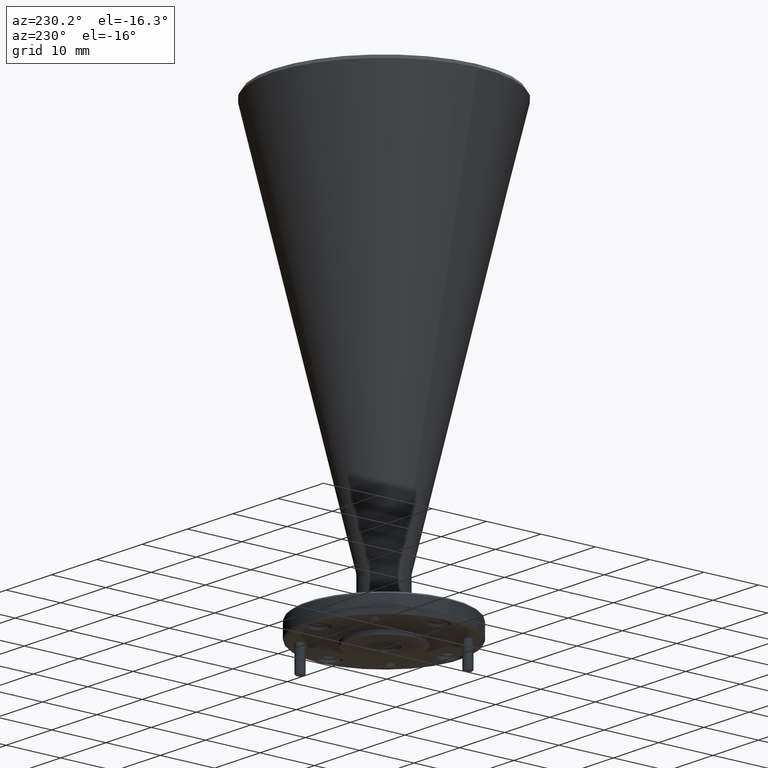
[diagram: clean part render]
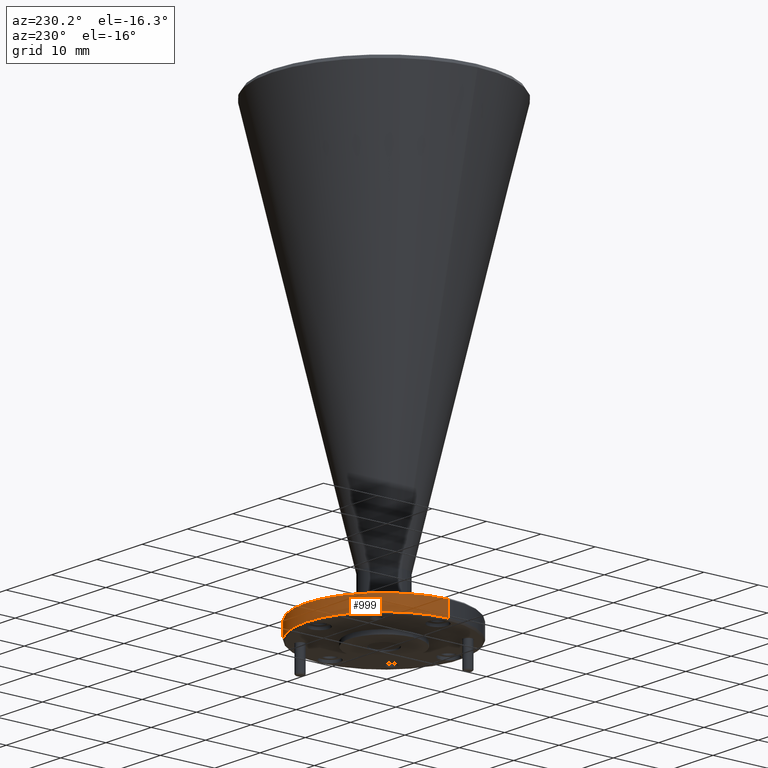
[diagram: same view with one face highlighted and labeled with its STEP entity id]
A machine part, auxiliary view. The second image highlights one B-rep face of the part: STEP entity #999.
In plain terms, the highlighted cylindrical surface (partial cylindrical patch) has radius 14.2875 mm, axis along (-0, -0, 1).
Its self-contained STEP definition (entity closure, byte-faithful):
#69 = VERTEX_POINT ( 'NONE', #2040 ) ;
#158 = ORIENTED_EDGE ( 'NONE', *, *, #1618, .T. ) ;
#171 = DIRECTION ( 'NONE',  ( 1.000000000000000000, 0.0000000000000000000, 0.0000000000000000000 ) ) ;
#183 = ORIENTED_EDGE ( 'NONE', *, *, #1638, .T. ) ;
#201 = VECTOR ( 'NONE', #1944, 39.37007874015748100 ) ;
#410 = CIRCLE ( 'NONE', #918, 0.5625000000000001100 ) ;
#480 = CARTESIAN_POINT ( 'NONE',  ( -0.08767836826029663800, 1.133992482487602600, 6.234682531103585400 ) ) ;
#498 = LINE ( 'NONE', #910, #1801 ) ;
#552 = CARTESIAN_POINT ( 'NONE',  ( 1.037321631739703400, 1.133992482487602400, 0.04013612407725361500 ) ) ;
#654 = LINE ( 'NONE', #480, #201 ) ;
#811 = ORIENTED_EDGE ( 'NONE', *, *, #1225, .T. ) ;
#859 = DIRECTION ( 'NONE',  ( -0.0000000000000000000, -0.0000000000000000000, 1.000000000000000000 ) ) ;
#910 = CARTESIAN_POINT ( 'NONE',  ( 1.037321631739703400, 1.133992482487602400, 6.234682531103585400 ) ) ;
#918 = AXIS2_PLACEMENT_3D ( 'NONE', #963, #2102, #171 ) ;
#923 = DIRECTION ( 'NONE',  ( -0.0000000000000000000, -0.0000000000000000000, 1.000000000000000000 ) ) ;
#963 = CARTESIAN_POINT ( 'NONE',  ( 0.4748216317397033800, 1.133992482487602400, 0.04013612407725361500 ) ) ;
#994 = AXIS2_PLACEMENT_3D ( 'NONE', #1644, #1295, #1298 ) ;
#999 = ADVANCED_FACE ( 'NONE', ( #1088 ), #1807, .T. ) ;
#1024 = EDGE_LOOP ( 'NONE', ( #183, #158, #811, #2087 ) ) ;
#1088 = FACE_OUTER_BOUND ( 'NONE', #1024, .T. ) ;
#1105 = VERTEX_POINT ( 'NONE', #552 ) ;
#1169 = DIRECTION ( 'NONE',  ( 1.000000000000000000, 0.0000000000000000000, 0.0000000000000000000 ) ) ;
#1225 = EDGE_CURVE ( 'NONE', #69, #1838, #1385, .T. ) ;
#1295 = DIRECTION ( 'NONE',  ( 0.0000000000000000000, 0.0000000000000000000, -1.000000000000000000 ) ) ;
#1298 = DIRECTION ( 'NONE',  ( -1.000000000000000000, 0.0000000000000000000, 0.0000000000000000000 ) ) ;
#1385 = CIRCLE ( 'NONE', #994, 0.5625000000000000000 ) ;
#1486 = CARTESIAN_POINT ( 'NONE',  ( 0.4748216317397033800, 1.133992482487602400, 6.234682531103585400 ) ) ;
#1532 = CARTESIAN_POINT ( 'NONE',  ( 1.037321631739703400, 1.133992482487602400, 0.1501361240772521600 ) ) ;
#1618 = EDGE_CURVE ( 'NONE', #1874, #69, #654, .T. ) ;
#1638 = EDGE_CURVE ( 'NONE', #1105, #1874, #410, .T. ) ;
#1640 = AXIS2_PLACEMENT_3D ( 'NONE', #1486, #859, #1169 ) ;
#1644 = CARTESIAN_POINT ( 'NONE',  ( 0.4748216317397033800, 1.133992482487602400, 0.1501361240772521600 ) ) ;
#1801 = VECTOR ( 'NONE', #923, 39.37007874015748100 ) ;
#1807 = CYLINDRICAL_SURFACE ( 'NONE', #1640, 0.5625000000000001100 ) ;
#1838 = VERTEX_POINT ( 'NONE', #1532 ) ;
#1839 = CARTESIAN_POINT ( 'NONE',  ( -0.08767836826029663800, 1.133992482487602600, 0.04013612407725361500 ) ) ;
#1874 = VERTEX_POINT ( 'NONE', #1839 ) ;
#1944 = DIRECTION ( 'NONE',  ( -0.0000000000000000000, -0.0000000000000000000, 1.000000000000000000 ) ) ;
#2040 = CARTESIAN_POINT ( 'NONE',  ( -0.08767836826029663800, 1.133992482487602600, 0.1501361240772521600 ) ) ;
#2041 = EDGE_CURVE ( 'NONE', #1105, #1838, #498, .T. ) ;
#2087 = ORIENTED_EDGE ( 'NONE', *, *, #2041, .F. ) ;
#2102 = DIRECTION ( 'NONE',  ( -0.0000000000000000000, -0.0000000000000000000, 1.000000000000000000 ) ) ;